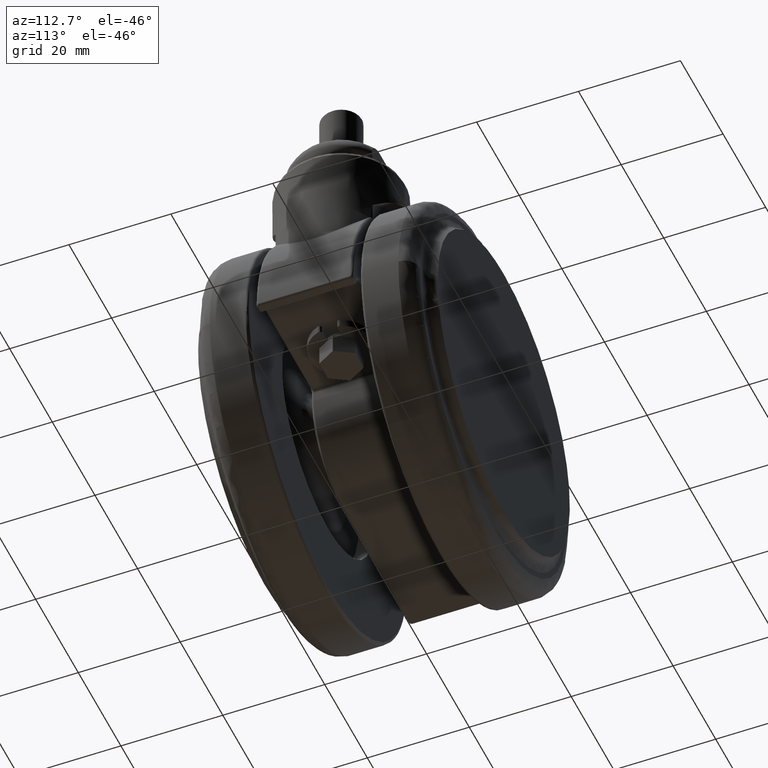
[diagram: clean part render]
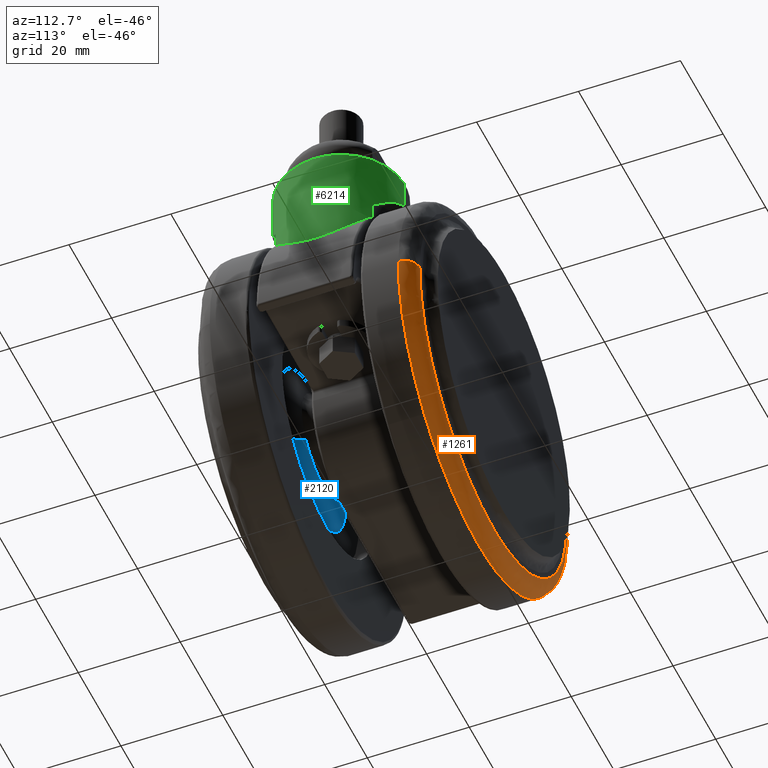
[diagram: same view with three faces highlighted in distinct colors, each labeled with its STEP entity id]
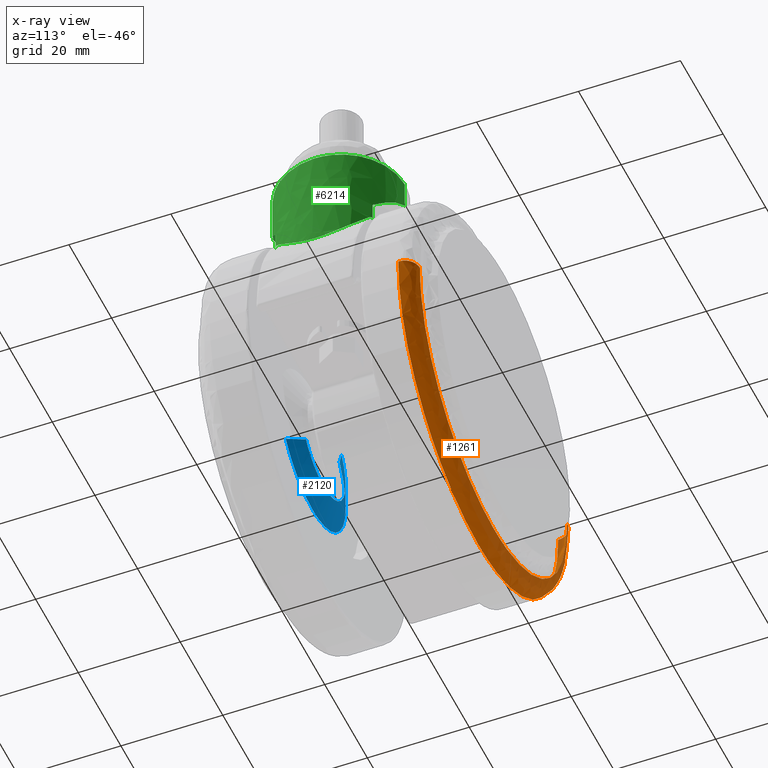
[diagram: x-ray of the same camera — body ghosted, the three highlighted faces saturated]
A machine part, auxiliary view with three faces highlighted in distinct colors.
The next image is the same camera in x-ray (body ghosted, the three faces saturated) — at least one of them is partly hidden behind the body in this view.
Their STEP definitions:

[orange] entity #1261 — the highlighted face is a freeform B-spline surface patch.
#1034=CARTESIAN_POINT('',(5.334630980545483,18.500000000211710,-68.147901784395486));
#1035=VERTEX_POINT('',#1034);
#1041=CARTESIAN_POINT('',(17.497039157643002,18.500000000455341,-40.028773504365802));
#1042=VERTEX_POINT('',#1041);
#1043=CARTESIAN_POINT('',(5.334630980545540,18.500000000211710,-68.147901784395543));
#1044=CARTESIAN_POINT('',(17.500000000000000,18.500000000352323,-57.000396369572684));
#1045=CARTESIAN_POINT('',(17.500000000000000,18.500000000452509,-40.500000000000000));
#1046=CARTESIAN_POINT('',(17.500000000000004,18.500000000453930,-40.264377450299897));
#1047=CARTESIAN_POINT('',(17.497039157642991,18.500000000455348,-40.028773504365809));
#1055=(BOUNDED_CURVE()B_SPLINE_CURVE(2,(#1043,#1044,#1045,#1046,#1047),.UNSPECIFIED.,.F.,.U.)B_SPLINE_CURVE_WITH_KNOTS((3,2,3),(0.118415199228371,0.250000000000000,0.252215704078312),.UNSPECIFIED.)CURVE()GEOMETRIC_REPRESENTATION_ITEM()RATIONAL_B_SPLINE_CURVE((0.853959782054475,0.845838816620283,1.0,0.997404141202261,0.994854295643921))REPRESENTATION_ITEM(''));
#1056=EDGE_CURVE('',#1035,#1042,#1055,.T.);
#1116=CARTESIAN_POINT('',(-57.497039157642988,18.500000000455351,-40.971226495634191));
#1117=VERTEX_POINT('',#1116);
#1133=CARTESIAN_POINT('',(-20.0,18.500000000000000,-78.000000000000014));
#1134=VERTEX_POINT('',#1133);
#1135=CARTESIAN_POINT('',(-57.497039157642988,18.500000000455344,-40.971226495634191));
#1136=CARTESIAN_POINT('',(-57.031697371515932,18.500000000227672,-78.000000000000014));
#1137=CARTESIAN_POINT('',(-20.0,18.500000000000000,-78.000000000000014));
#1145=(BOUNDED_CURVE()B_SPLINE_CURVE(2,(#1135,#1136,#1137),.UNSPECIFIED.,.F.,.U.)B_SPLINE_CURVE_WITH_KNOTS((3,3),(0.752215704078312,1.0),.UNSPECIFIED.)CURVE()GEOMETRIC_REPRESENTATION_ITEM()RATIONAL_B_SPLINE_CURVE((0.994854295643921,0.709702639984287,1.0))REPRESENTATION_ITEM(''));
#1146=EDGE_CURVE('',#1117,#1134,#1145,.T.);
#1148=CARTESIAN_POINT('',(-20.0,18.500000000000000,-78.000000000000014));
#1149=CARTESIAN_POINT('',(-5.417048964760109,18.500000000087432,-78.0));
#1150=CARTESIAN_POINT('',(5.334630980545540,18.500000000211710,-68.147901784395543));
#1158=(BOUNDED_CURVE()B_SPLINE_CURVE(2,(#1148,#1149,#1150),.UNSPECIFIED.,.F.,.U.)B_SPLINE_CURVE_WITH_KNOTS((3,3),(0.0,0.118415199228371),.UNSPECIFIED.)CURVE()GEOMETRIC_REPRESENTATION_ITEM()RATIONAL_B_SPLINE_CURVE((1.0,0.861267964566265,0.853959782054475))REPRESENTATION_ITEM(''));
#1159=EDGE_CURVE('',#1134,#1035,#1158,.T.);
#1167=CARTESIAN_POINT('',(17.476606423104172,18.291388672660208,-38.980772872872045));
#1168=CARTESIAN_POINT('',(17.483153771816106,18.291388672660208,-39.501766902938776));
#1169=CARTESIAN_POINT('',(17.960913069746042,18.291388672660204,-77.518642585233152));
#1170=CARTESIAN_POINT('',(-19.528864757743570,18.291388672660261,-77.989777827489633));
#1171=CARTESIAN_POINT('',(-57.018642585233160,18.291388672660315,-78.460913069746042));
#1172=CARTESIAN_POINT('',(-57.496401883162896,18.291388672660318,-40.444037387467056));
#1173=CARTESIAN_POINT('',(-57.502949231874652,18.291388672660322,-39.923043357415395));
#1174=CARTESIAN_POINT('',(17.716376549328995,21.732611522053201,-38.971053068578037));
#1175=CARTESIAN_POINT('',(17.722965787069228,21.732611522053208,-39.495380346136308));
#1176=CARTESIAN_POINT('',(18.203781722675380,21.732611522053197,-77.755482722387654));
#1177=CARTESIAN_POINT('',(-19.525850499856137,21.732611522053269,-78.229632222531521));
#1178=CARTESIAN_POINT('',(-57.255482722387661,21.732611522053315,-78.703781722675387));
#1179=CARTESIAN_POINT('',(-57.736298657993601,21.732611522053322,-40.443679346439552));
#1180=CARTESIAN_POINT('',(-57.742887895733659,21.732611522053315,-39.919352068896437));
#1181=CARTESIAN_POINT('',(14.276634331634103,21.492738090595235,-39.110493380447579));
#1182=CARTESIAN_POINT('',(14.282622629376624,21.492738090595239,-39.587001889674610));
#1183=CARTESIAN_POINT('',(14.719588041047052,21.492738090595243,-74.357774127735325));
#1184=CARTESIAN_POINT('',(-19.569093043344125,21.492738090595289,-74.788681084391186));
#1185=CARTESIAN_POINT('',(-53.857774127735311,21.492738090595335,-75.219588041047047));
#1186=CARTESIAN_POINT('',(-54.294739539405562,21.492738090595346,-40.448815803000457));
#1187=CARTESIAN_POINT('',(-54.300727837147917,21.492738090595342,-39.972307293787217));
#1195=(BOUNDED_SURFACE()B_SPLINE_SURFACE(2,2,((#1167,#1174,#1181),(#1168,#1175,#1182),(#1169,#1176,#1183),(#1170,#1177,#1184),(#1171,#1178,#1185),(#1172,#1179,#1186),(#1173,#1180,#1187)),.UNSPECIFIED.,.F.,.F.,.U.)B_SPLINE_SURFACE_WITH_KNOTS((3,1,2,1,3),(3,3),(0.0,1.242400048831875,63.362402489084872,125.482404929337900,126.724804978133210),(0.0,5.468189979833281),.UNSPECIFIED.)GEOMETRIC_REPRESENTATION_ITEM()RATIONAL_B_SPLINE_SURFACE(((0.921146729405180,0.604479481452586,0.921146741237813),(0.915813262248088,0.600979527147212,0.915813274012210),(0.643806437242182,0.422481857576905,0.643806445512228),(0.910479795090997,0.597479572841838,0.910479806786608),(0.643806437242182,0.422481857576905,0.643806445512228),(0.915813262247931,0.600979527147109,0.915813274012053),(0.921146729404866,0.604479481452380,0.921146741237499)))REPRESENTATION_ITEM('')SURFACE());
#1196=ORIENTED_EDGE('',*,*,#1056,.F.);
#1197=ORIENTED_EDGE('',*,*,#1159,.F.);
#1198=ORIENTED_EDGE('',*,*,#1146,.F.);
#1199=CARTESIAN_POINT('',(-54.497276025979460,21.500000000000028,-40.933528376008518));
#1200=VERTEX_POINT('',#1199);
#1201=CARTESIAN_POINT('',(-57.497039157642988,18.500000000455351,-40.971226495634191));
#1202=CARTESIAN_POINT('',(-57.497039157187622,21.499999999051884,-40.971226495634689));
#1203=CARTESIAN_POINT('',(-54.497276025979460,21.500000000000018,-40.933528376008518));
#1211=(BOUNDED_CURVE()B_SPLINE_CURVE(2,(#1201,#1202,#1203),.UNSPECIFIED.,.F.,.U.)B_SPLINE_CURVE_WITH_KNOTS((3,3),(-1.725134643126181,-0.274865357042298),.UNSPECIFIED.)CURVE()GEOMETRIC_REPRESENTATION_ITEM()RATIONAL_B_SPLINE_CURVE((0.883342149597530,0.624617224213166,0.883342149537418))REPRESENTATION_ITEM(''));
#1212=EDGE_CURVE('',#1117,#1200,#1211,.T.);
#1213=ORIENTED_EDGE('',*,*,#1212,.T.);
#1214=CARTESIAN_POINT('',(-20.0,21.500000000000000,-75.000000000000014));
#1215=VERTEX_POINT('',#1214);
#1216=CARTESIAN_POINT('',(-54.497276025979467,21.500000000000025,-40.933528376008510));
#1217=CARTESIAN_POINT('',(-54.069161582255717,21.500000000000014,-75.000000000005983));
#1218=CARTESIAN_POINT('',(-20.0,21.500000000000000,-75.000000000000014));
#1226=(BOUNDED_CURVE()B_SPLINE_CURVE(2,(#1216,#1217,#1218),.UNSPECIFIED.,.F.,.U.)B_SPLINE_CURVE_WITH_KNOTS((3,3),(0.752215704078379,1.0),.UNSPECIFIED.)CURVE()GEOMETRIC_REPRESENTATION_ITEM()RATIONAL_B_SPLINE_CURVE((0.994854295643767,0.709702639984365,1.0))REPRESENTATION_ITEM(''));
#1227=EDGE_CURVE('',#1200,#1215,#1226,.T.);
#1228=ORIENTED_EDGE('',*,*,#1227,.T.);
#1229=CARTESIAN_POINT('',(14.497276025979470,21.499999999999972,-40.066471623991482));
#1230=VERTEX_POINT('',#1229);
#1231=CARTESIAN_POINT('',(-20.0,21.500000000000000,-75.000000000000014));
#1232=CARTESIAN_POINT('',(14.500000000468120,21.499999999999982,-74.999999999994145));
#1233=CARTESIAN_POINT('',(14.500000000942149,21.499999999999972,-40.499999999988169));
#1234=CARTESIAN_POINT('',(14.500000000945130,21.499999999999968,-40.283227254257461));
#1235=CARTESIAN_POINT('',(14.497276025979462,21.499999999999972,-40.066471623991468));
#1243=(BOUNDED_CURVE()B_SPLINE_CURVE(2,(#1231,#1232,#1233,#1234,#1235),.UNSPECIFIED.,.F.,.U.)B_SPLINE_CURVE_WITH_KNOTS((3,2,3),(0.0,0.250000000000000,0.252215704078379),.UNSPECIFIED.)CURVE()GEOMETRIC_REPRESENTATION_ITEM()RATIONAL_B_SPLINE_CURVE((1.0,0.707106781186548,1.0,0.997404141202182,0.994854295643766))REPRESENTATION_ITEM(''));
#1244=EDGE_CURVE('',#1215,#1230,#1243,.T.);
#1245=ORIENTED_EDGE('',*,*,#1244,.T.);
#1246=CARTESIAN_POINT('',(17.497039157642995,18.500000000455348,-40.028773504365795));
#1247=CARTESIAN_POINT('',(17.497039157187558,21.499999999051806,-40.028773504365283));
#1248=CARTESIAN_POINT('',(14.497276025979462,21.499999999999979,-40.066471623991475));
#1256=(BOUNDED_CURVE()B_SPLINE_CURVE(2,(#1246,#1247,#1248),.UNSPECIFIED.,.F.,.U.)B_SPLINE_CURVE_WITH_KNOTS((3,3),(-1.725134643126144,-0.274865357042294),.UNSPECIFIED.)CURVE()GEOMETRIC_REPRESENTATION_ITEM()RATIONAL_B_SPLINE_CURVE((0.883342149597517,0.624617224213172,0.883342149537419))REPRESENTATION_ITEM(''));
#1257=EDGE_CURVE('',#1042,#1230,#1256,.T.);
#1258=ORIENTED_EDGE('',*,*,#1257,.F.);
#1259=EDGE_LOOP('',(#1196,#1197,#1198,#1213,#1228,#1245,#1258));
#1260=FACE_OUTER_BOUND('',#1259,.T.);
#1261=ADVANCED_FACE('',(#1260),#1195,.T.);

[blue] entity #2120 — the highlighted face is a freeform B-spline surface patch.
#1837=CARTESIAN_POINT('',(-29.419301099958592,-11.823357401013970,-44.506019158326033));
#1838=VERTEX_POINT('',#1837);
#1852=CARTESIAN_POINT('',(-28.333116507314269,-11.823357401181370,-34.556045761121950));
#1853=VERTEX_POINT('',#1852);
#1854=CARTESIAN_POINT('',(-28.333116507314269,-11.823357401181370,-34.556045761121950));
#1855=CARTESIAN_POINT('',(-30.235791259768387,-11.823357401122161,-37.223497385417410));
#1856=CARTESIAN_POINT('',(-30.235791259674649,-11.823357401070220,-40.499999999792017));
#1857=CARTESIAN_POINT('',(-30.235791259614970,-11.823357401037144,-42.586216392896795));
#1858=CARTESIAN_POINT('',(-29.419301099958592,-11.823357401013970,-44.506019158326040));
#1866=(BOUNDED_CURVE()B_SPLINE_CURVE(2,(#1854,#1855,#1856,#1857,#1858),.UNSPECIFIED.,.F.,.U.)B_SPLINE_CURVE_WITH_KNOTS((3,2,3),(0.650075709669775,0.750000000000000,0.816449865338749),.UNSPECIFIED.)CURVE()GEOMETRIC_REPRESENTATION_ITEM()RATIONAL_B_SPLINE_CURVE((0.859446788450959,0.882931411870121,1.0,0.922149140204853,0.885683713608853))REPRESENTATION_ITEM(''));
#1867=EDGE_CURVE('',#1853,#1838,#1866,.T.);
#1946=CARTESIAN_POINT('',(-11.666883492685740,-11.823357401181379,-46.443954238878050));
#1947=VERTEX_POINT('',#1946);
#1963=CARTESIAN_POINT('',(-20.0,-11.823357401279340,-50.735791260166202));
#1964=VERTEX_POINT('',#1963);
#1965=CARTESIAN_POINT('',(-20.0,-11.823357401279340,-50.735791260166202));
#1966=CARTESIAN_POINT('',(-14.728221088369404,-11.823357401248698,-50.735791260208110));
#1967=CARTESIAN_POINT('',(-11.666883492685741,-11.823357401181372,-46.443954238878057));
#1975=(BOUNDED_CURVE()B_SPLINE_CURVE(2,(#1965,#1966,#1967),.UNSPECIFIED.,.F.,.U.)B_SPLINE_CURVE_WITH_KNOTS((3,3),(0.0,0.150075709669775),.UNSPECIFIED.)CURVE()GEOMETRIC_REPRESENTATION_ITEM()RATIONAL_B_SPLINE_CURVE((1.0,0.824175369316426,0.859446788450959))REPRESENTATION_ITEM(''));
#1976=EDGE_CURVE('',#1964,#1947,#1975,.T.);
#1978=CARTESIAN_POINT('',(-29.419301099958595,-11.823357401013968,-44.506019158326033));
#1979=CARTESIAN_POINT('',(-26.769785374391791,-11.823357401146653,-50.735791260040614));
#1980=CARTESIAN_POINT('',(-20.0,-11.823357401279340,-50.735791260166202));
#1988=(BOUNDED_CURVE()B_SPLINE_CURVE(2,(#1978,#1979,#1980),.UNSPECIFIED.,.F.,.U.)B_SPLINE_CURVE_WITH_KNOTS((3,3),(0.816449865338749,1.0),.UNSPECIFIED.)CURVE()GEOMETRIC_REPRESENTATION_ITEM()RATIONAL_B_SPLINE_CURVE((0.885683713608853,0.784957640981694,1.0))REPRESENTATION_ITEM(''));
#1989=EDGE_CURVE('',#1838,#1964,#1988,.T.);
#2018=CARTESIAN_POINT('',(-32.618790534514858,-14.000000000000240,-31.499104186468081));
#2019=VERTEX_POINT('',#2018);
#2020=CARTESIAN_POINT('',(-28.333116507314269,-11.823357401181370,-34.556045761121950));
#2021=CARTESIAN_POINT('',(-32.618790534514858,-14.000000000000240,-31.499104186468081));
#2022=QUASI_UNIFORM_CURVE('',1,(#2020,#2021),.UNSPECIFIED.,.F.,.U.);
#2023=EDGE_CURVE('',#1853,#2019,#2022,.T.);
#2040=CARTESIAN_POINT('',(-7.381209465485160,-14.000000000000240,-49.500895813531933));
#2041=VERTEX_POINT('',#2040);
#2057=CARTESIAN_POINT('',(-11.666883492685740,-11.823357401181379,-46.443954238878050));
#2058=CARTESIAN_POINT('',(-7.381209465485160,-14.000000000000240,-49.500895813531933));
#2059=QUASI_UNIFORM_CURVE('',1,(#2057,#2058),.UNSPECIFIED.,.F.,.U.);
#2060=EDGE_CURVE('',#1947,#2041,#2059,.T.);
#2065=CARTESIAN_POINT('',(-28.225974656347681,-11.768941336039310,-34.632469300930751));
#2066=CARTESIAN_POINT('',(-34.093505355416937,-11.768941336039314,-42.858443957278432));
#2067=CARTESIAN_POINT('',(-25.867530699069249,-11.768941336039310,-48.725974656347681));
#2068=CARTESIAN_POINT('',(-17.641556042721572,-11.768941336039314,-54.593505355416930));
#2069=CARTESIAN_POINT('',(-11.774025343652321,-11.768941336039310,-46.367530699069249));
#2070=CARTESIAN_POINT('',(-32.728610931477327,-14.055776466599021,-31.420770058619180));
#2071=CARTESIAN_POINT('',(-41.807840872858158,-14.055776466599019,-44.149380990096503));
#2072=CARTESIAN_POINT('',(-29.079229941380820,-14.055776466599021,-53.228610931477327));
#2073=CARTESIAN_POINT('',(-16.350619009903500,-14.055776466599019,-62.307840872858165));
#2074=CARTESIAN_POINT('',(-7.271389068522673,-14.055776466599021,-49.579229941380817));
#2082=(BOUNDED_SURFACE()B_SPLINE_SURFACE(2,1,((#2065,#2070),(#2066,#2071),(#2067,#2072),(#2068,#2073),(#2069,#2074)),.UNSPECIFIED.,.F.,.F.,.U.)B_SPLINE_SURFACE_WITH_KNOTS((3,2,3),(2,2),(0.0,25.904742799317361,51.809485598634723),(0.0,5.984844222161525),.UNSPECIFIED.)GEOMETRIC_REPRESENTATION_ITEM()RATIONAL_B_SPLINE_SURFACE(((1.0,1.0),(0.707106781186548,0.707106781186548),(1.0,1.0),(0.707106781186548,0.707106781186548),(1.0,1.0)))REPRESENTATION_ITEM('')SURFACE());
#2083=ORIENTED_EDGE('',*,*,#1976,.T.);
#2084=ORIENTED_EDGE('',*,*,#2060,.T.);
#2085=CARTESIAN_POINT('',(-20.0,-14.0,-56.0));
#2086=VERTEX_POINT('',#2085);
#2087=CARTESIAN_POINT('',(-20.0,-14.0,-56.0));
#2088=CARTESIAN_POINT('',(-12.016975429243059,-14.000000000000115,-56.000000000000163));
#2089=CARTESIAN_POINT('',(-7.381209465485160,-14.000000000000242,-49.500895813531926));
#2097=(BOUNDED_CURVE()B_SPLINE_CURVE(2,(#2087,#2088,#2089),.UNSPECIFIED.,.F.,.U.)B_SPLINE_CURVE_WITH_KNOTS((3,3),(0.0,0.150075709668550),.UNSPECIFIED.)CURVE()GEOMETRIC_REPRESENTATION_ITEM()RATIONAL_B_SPLINE_CURVE((1.0,0.824175369317860,0.859446788450384))REPRESENTATION_ITEM(''));
#2098=EDGE_CURVE('',#2086,#2041,#2097,.T.);
#2099=ORIENTED_EDGE('',*,*,#2098,.F.);
#2100=CARTESIAN_POINT('',(-32.618790534514858,-14.000000000000238,-31.499104186468085));
#2101=CARTESIAN_POINT('',(-35.500000000000441,-14.000000000000224,-35.538410882626629));
#2102=CARTESIAN_POINT('',(-35.500000000000377,-14.000000000000190,-40.499999999999737));
#2103=CARTESIAN_POINT('',(-35.500000000000128,-14.000000000000062,-55.999999999999908));
#2104=CARTESIAN_POINT('',(-20.0,-14.0,-56.0));
#2112=(BOUNDED_CURVE()B_SPLINE_CURVE(2,(#2100,#2101,#2102,#2103,#2104),.UNSPECIFIED.,.F.,.U.)B_SPLINE_CURVE_WITH_KNOTS((3,2,3),(0.650075709668551,0.750000000000000,1.0),.UNSPECIFIED.)CURVE()GEOMETRIC_REPRESENTATION_ITEM()RATIONAL_B_SPLINE_CURVE((0.859446788450384,0.882931411868687,1.0,0.707106781186548,1.0))REPRESENTATION_ITEM(''));
#2113=EDGE_CURVE('',#2019,#2086,#2112,.T.);
#2114=ORIENTED_EDGE('',*,*,#2113,.F.);
#2115=ORIENTED_EDGE('',*,*,#2023,.F.);
#2116=ORIENTED_EDGE('',*,*,#1867,.T.);
#2117=ORIENTED_EDGE('',*,*,#1989,.T.);
#2118=EDGE_LOOP('',(#2083,#2084,#2099,#2114,#2115,#2116,#2117));
#2119=FACE_OUTER_BOUND('',#2118,.T.);
#2120=ADVANCED_FACE('',(#2119),#2082,.T.);

[green] entity #6214 — the highlighted face is a freeform B-spline surface patch.
#5269=CARTESIAN_POINT('',(-0.225964656877313,-12.497957432070320,-0.999999999055595));
#5270=VERTEX_POINT('',#5269);
#5284=CARTESIAN_POINT('',(12.496052366039271,-0.314126193120608,-0.999999998100721));
#5285=VERTEX_POINT('',#5284);
#5286=CARTESIAN_POINT('',(12.496052366039262,-0.314126193120608,-0.999999998100721));
#5287=CARTESIAN_POINT('',(12.189723452181109,-12.499999999999975,-0.999999998112359));
#5288=CARTESIAN_POINT('',(8.993402E-016,-12.499999999999970,-0.999999999038426));
#5289=CARTESIAN_POINT('',(-0.112991560156139,-12.499999999999973,-0.999999999047010));
#5290=CARTESIAN_POINT('',(-0.225964656877311,-12.497957432070315,-0.999999999055595));
#5298=(BOUNDED_CURVE()B_SPLINE_CURVE(2,(#5286,#5287,#5288,#5289,#5290),.UNSPECIFIED.,.F.,.U.)B_SPLINE_CURVE_WITH_KNOTS((3,2,3),(0.004420108231298,0.250000000000000,0.253183962508897),.UNSPECIFIED.)CURVE()GEOMETRIC_REPRESENTATION_ITEM()RATIONAL_B_SPLINE_CURVE((0.989826157679079,0.712285260096022,1.0,0.996269755888751,0.992634527436696))REPRESENTATION_ITEM(''));
#5299=EDGE_CURVE('',#5285,#5270,#5298,.T.);
#5350=CARTESIAN_POINT('',(12.500000000000000,2.842171E-014,-1.0));
#5351=VERTEX_POINT('',#5350);
#5352=CARTESIAN_POINT('',(12.500000000000000,2.842171E-014,-1.0));
#5353=CARTESIAN_POINT('',(12.499999999999998,-0.157087901581694,-0.999999999050360));
#5354=CARTESIAN_POINT('',(12.496052366039264,-0.314126193120608,-0.999999998100721));
#5362=(BOUNDED_CURVE()B_SPLINE_CURVE(2,(#5352,#5353,#5354),.UNSPECIFIED.,.F.,.U.)B_SPLINE_CURVE_WITH_KNOTS((3,3),(0.0,0.004420108231298),.UNSPECIFIED.)CURVE()GEOMETRIC_REPRESENTATION_ITEM()RATIONAL_B_SPLINE_CURVE((1.0,0.994821521090526,0.989826157679078))REPRESENTATION_ITEM(''));
#5363=EDGE_CURVE('',#5351,#5285,#5362,.T.);
#5365=CARTESIAN_POINT('',(0.225964656877310,12.497957432070370,-0.999999999055595));
#5366=VERTEX_POINT('',#5365);
#5367=CARTESIAN_POINT('',(0.225964656877312,12.497957432070367,-0.999999999055595));
#5368=CARTESIAN_POINT('',(12.500000000000000,12.276041314986168,-0.999999999988280));
#5369=CARTESIAN_POINT('',(12.500000000000000,2.842171E-014,-1.0));
#5377=(BOUNDED_CURVE()B_SPLINE_CURVE(2,(#5367,#5368,#5369),.UNSPECIFIED.,.F.,.U.)B_SPLINE_CURVE_WITH_KNOTS((3,3),(0.753183962508897,1.0),.UNSPECIFIED.)CURVE()GEOMETRIC_REPRESENTATION_ITEM()RATIONAL_B_SPLINE_CURVE((0.992634527436696,0.710837025297796,1.0))REPRESENTATION_ITEM(''));
#5378=EDGE_CURVE('',#5366,#5351,#5377,.T.);
#5413=CARTESIAN_POINT('',(8.124038404636160,-9.499999999999801,-16.457569511080550));
#5414=VERTEX_POINT('',#5413);
#5428=CARTESIAN_POINT('',(8.124038404636170,-9.499999999999840,-12.763950104340299));
#5429=VERTEX_POINT('',#5428);
#5430=CARTESIAN_POINT('',(8.124038404636170,-9.499999999999840,-12.763950104340299));
#5431=CARTESIAN_POINT('',(8.124038404636160,-9.499999999999801,-16.457569511080550));
#5432=QUASI_UNIFORM_CURVE('',1,(#5430,#5431),.UNSPECIFIED.,.F.,.U.);
#5433=EDGE_CURVE('',#5429,#5414,#5432,.T.);
#5566=CARTESIAN_POINT('',(8.674675786448910,-8.999999999999799,-16.333639733257101));
#5567=VERTEX_POINT('',#5566);
#5568=CARTESIAN_POINT('',(8.124038404636160,-9.499999999999801,-16.457569511080600));
#5569=CARTESIAN_POINT('',(8.124038404636162,-9.499999999999806,-16.414200064559129));
#5570=CARTESIAN_POINT('',(8.126690332502317,-9.497736174231699,-16.371231805839461));
#5571=CARTESIAN_POINT('',(8.137386926826496,-9.488569757979171,-16.307798470748519));
#5572=CARTESIAN_POINT('',(8.142108294493145,-9.484520936983955,-16.286908163841989));
#5573=CARTESIAN_POINT('',(8.154325207744590,-9.474019489619083,-16.246955735573270));
#5574=CARTESIAN_POINT('',(8.161929370907595,-9.467473804620305,-16.227565396909519));
#5575=CARTESIAN_POINT('',(8.180545957117136,-9.451392444521082,-16.191806845591518));
#5576=CARTESIAN_POINT('',(8.191382210520674,-9.442009227296703,-16.175708452779169));
#5577=CARTESIAN_POINT('',(8.216666540567884,-9.420014422934973,-16.147752807852090));
#5578=CARTESIAN_POINT('',(8.230600532916677,-9.407848327945837,-16.136515024708210));
#5579=CARTESIAN_POINT('',(8.260486312864730,-9.381618259610443,-16.119507982290401));
#5580=CARTESIAN_POINT('',(8.276427287217794,-9.367561565847229,-16.113804756467989));
#5581=CARTESIAN_POINT('',(8.308466142649705,-9.339156743892085,-16.107514956112752));
#5582=CARTESIAN_POINT('',(8.324858493027625,-9.324547908247004,-16.106840570233022));
#5583=CARTESIAN_POINT('',(8.356898455556038,-9.295843739309142,-16.109260608728899));
#5584=CARTESIAN_POINT('',(8.372714715982632,-9.281599759130637,-16.112313052533828));
#5585=CARTESIAN_POINT('',(8.404022424144115,-9.253261743753331,-16.121232030605800));
#5586=CARTESIAN_POINT('',(8.419550485769483,-9.239133394516564,-16.127137941274309));
#5587=CARTESIAN_POINT('',(8.464723528064031,-9.197832388656034,-16.147804600729071));
#5588=CARTESIAN_POINT('',(8.493372642115336,-9.171371227154255,-16.165534998831280));
#5589=CARTESIAN_POINT('',(8.548688806194287,-9.119832713320719,-16.206240134389411));
#5590=CARTESIAN_POINT('',(8.575406623329005,-9.094704077569281,-16.229350710746850));
#5591=CARTESIAN_POINT('',(8.626532156191512,-9.046224846430917,-16.278987563822970));
#5592=CARTESIAN_POINT('',(8.651034908655541,-9.022786327795874,-16.305588570460980));
#5593=CARTESIAN_POINT('',(8.674675786448919,-8.999999999999799,-16.333639733257101));
#5594=B_SPLINE_CURVE_WITH_KNOTS('',3,(#5568,#5569,#5570,#5571,#5572,#5573,#5574,#5575,#5576,#5577,#5578,#5579,#5580,#5581,#5582,#5583,#5584,#5585,#5586,#5587,#5588,#5589,#5590,#5591,#5592,#5593),.UNSPECIFIED.,.F.,.U.,(4,2,2,2,2,2,2,2,2,2,2,2,4),(0.0,0.124999999999995,0.187499999999997,0.249999999999998,0.312500000000000,0.375000000000002,0.437500000000004,0.500000000000006,0.562500000000007,0.625000000000009,0.750000000000006,0.875000000000003,1.0),.UNSPECIFIED.);
#5595=EDGE_CURVE('',#5414,#5567,#5594,.T.);
#5733=CARTESIAN_POINT('',(-0.225964702772757,-12.497959970627081,-6.305884120731403));
#5734=VERTEX_POINT('',#5733);
#5735=CARTESIAN_POINT('',(-0.225964702772757,-12.497959970627081,-6.305884120731403));
#5736=CARTESIAN_POINT('',(0.036371884995677,-12.502707935323720,-6.457589700772418));
#5737=CARTESIAN_POINT('',(0.296264470129033,-12.499144299371871,-6.611910916860469));
#5738=CARTESIAN_POINT('',(1.279961564842661,-12.455522154454011,-7.211317381841680));
#5739=CARTESIAN_POINT('',(1.987225242033013,-12.361174449275561,-7.674395283898874));
#5740=CARTESIAN_POINT('',(2.848662871004648,-12.172353411265251,-8.278378668179485));
#5741=CARTESIAN_POINT('',(3.020024907904202,-12.130961710757150,-8.400585281632182));
#5742=CARTESIAN_POINT('',(3.359527115579871,-12.041360501222680,-8.646798200253530));
#5743=CARTESIAN_POINT('',(3.527276741622434,-11.993265088561980,-8.770515328236822));
#5744=CARTESIAN_POINT('',(4.024726761153989,-11.839427408933350,-9.143433004626850));
#5745=CARTESIAN_POINT('',(4.348636310821356,-11.724154947162930,-9.394401833605473));
#5746=CARTESIAN_POINT('',(5.298514054063613,-11.342029479992091,-10.153789478320761));
#5747=CARTESIAN_POINT('',(5.902730168755372,-11.039182372447780,-10.668742591254210));
#5748=CARTESIAN_POINT('',(6.624379925546759,-10.601701100643851,-11.320722621264469));
#5749=CARTESIAN_POINT('',(6.767020840404126,-10.511233478500721,-11.451528870957350));
#5750=CARTESIAN_POINT('',(7.048960003299436,-10.324280378423969,-11.713877609948700));
#5751=CARTESIAN_POINT('',(7.188300769149589,-10.227755230760261,-11.845464961121710));
#5752=CARTESIAN_POINT('',(7.599767507325590,-9.930163002288571,-12.239654275978181));
#5753=CARTESIAN_POINT('',(7.865886326747391,-9.720761737491982,-12.502186838535430));
#5754=CARTESIAN_POINT('',(8.124038404636170,-9.499999999999840,-12.763950104340299));
#5755=B_SPLINE_CURVE_WITH_KNOTS('',3,(#5735,#5736,#5737,#5738,#5739,#5740,#5741,#5742,#5743,#5744,#5745,#5746,#5747,#5748,#5749,#5750,#5751,#5752,#5753,#5754),.UNSPECIFIED.,.F.,.U.,(4,2,2,2,2,2,2,2,2,4),(0.455674687676511,0.500000000000001,0.625000000000001,0.656250000000001,0.687500000000001,0.750000000000001,0.875000000000000,0.906250000000000,0.937500000000000,1.0),.UNSPECIFIED.);
#5756=EDGE_CURVE('',#5734,#5429,#5755,.T.);
#5929=CARTESIAN_POINT('',(0.225964703473396,12.497960015080190,-6.571245502004594));
#5930=VERTEX_POINT('',#5929);
#5931=CARTESIAN_POINT('',(0.225964703473396,12.497960015080190,-6.571245502004594));
#5932=CARTESIAN_POINT('',(0.225964656877310,12.497957432070370,-0.999999999055595));
#5933=QUASI_UNIFORM_CURVE('',1,(#5931,#5932),.UNSPECIFIED.,.F.,.U.);
#5934=EDGE_CURVE('',#5930,#5366,#5933,.T.);
#6054=CARTESIAN_POINT('',(-0.225964702772757,-12.497959970627081,-6.305884120731403));
#6055=CARTESIAN_POINT('',(-0.225964656877313,-12.497957432070320,-0.999999999055595));
#6056=QUASI_UNIFORM_CURVE('',1,(#6054,#6055),.UNSPECIFIED.,.F.,.U.);
#6057=EDGE_CURVE('',#5734,#5270,#6056,.T.);
#6064=CARTESIAN_POINT('',(-0.225964656763977,-12.497957432072360,-22.311505883681590));
#6065=CARTESIAN_POINT('',(12.271992775308412,-12.723922088836341,-22.311505883681580));
#6066=CARTESIAN_POINT('',(12.497957432072390,-0.225964656763949,-22.311505883681590));
#6067=CARTESIAN_POINT('',(12.723922088836368,12.271992775308442,-22.311505883681580));
#6068=CARTESIAN_POINT('',(0.225964656763977,12.497957432072420,-22.311505883681590));
#6069=CARTESIAN_POINT('',(-0.225964656763977,-12.497957432072360,-0.467212350961198));
#6070=CARTESIAN_POINT('',(12.271992775308412,-12.723922088836341,-0.467212350961198));
#6071=CARTESIAN_POINT('',(12.497957432072390,-0.225964656763949,-0.467212350961198));
#6072=CARTESIAN_POINT('',(12.723922088836368,12.271992775308442,-0.467212350961198));
#6073=CARTESIAN_POINT('',(0.225964656763977,12.497957432072420,-0.467212350961198));
#6081=(BOUNDED_SURFACE()B_SPLINE_SURFACE(2,1,((#6064,#6069),(#6065,#6070),(#6066,#6071),(#6067,#6072),(#6068,#6073)),.UNSPECIFIED.,.F.,.F.,.U.)B_SPLINE_SURFACE_WITH_KNOTS((3,2,3),(2,2),(0.0,20.710678118654759,41.421356237309510),(0.0,21.844293532720389),.UNSPECIFIED.)GEOMETRIC_REPRESENTATION_ITEM()RATIONAL_B_SPLINE_SURFACE(((1.0,1.0),(0.707106781186548,0.707106781186548),(1.0,1.0),(0.707106781186548,0.707106781186548),(1.0,1.0)))REPRESENTATION_ITEM('')SURFACE());
#6082=ORIENTED_EDGE('',*,*,#5378,.T.);
#6083=ORIENTED_EDGE('',*,*,#5363,.T.);
#6084=ORIENTED_EDGE('',*,*,#5299,.T.);
#6085=ORIENTED_EDGE('',*,*,#6057,.F.);
#6086=ORIENTED_EDGE('',*,*,#5756,.T.);
#6087=ORIENTED_EDGE('',*,*,#5433,.T.);
#6088=ORIENTED_EDGE('',*,*,#5595,.T.);
#6089=CARTESIAN_POINT('',(8.674675786448511,9.000000000000249,-16.333639733256600));
#6090=VERTEX_POINT('',#6089);
#6091=CARTESIAN_POINT('',(8.674675786448532,9.000000000000227,-16.333639733256550));
#6092=CARTESIAN_POINT('',(8.940283721757213,8.743993030543473,-16.648797719284168));
#6093=CARTESIAN_POINT('',(9.194608959558444,8.476258105902437,-16.961113725899470));
#6094=CARTESIAN_POINT('',(9.681378148960560,7.915725016313930,-17.577954923153680));
#6095=CARTESIAN_POINT('',(9.913826172125516,7.622945159763164,-17.882494977161510));
#6096=CARTESIAN_POINT('',(10.356856393979950,7.009191673392459,-18.480694843171278));
#6097=CARTESIAN_POINT('',(10.567450204404420,6.688256434733567,-18.774383455497048));
#6098=CARTESIAN_POINT('',(10.866287924383821,6.181604260563847,-19.203224978218000));
#6099=CARTESIAN_POINT('',(10.963050458770891,6.008490492576128,-19.344208521845282));
#6100=CARTESIAN_POINT('',(11.103741452060500,5.741692616818441,-19.552105848600391));
#6101=CARTESIAN_POINT('',(11.149942462308649,5.651474682292043,-19.620877531877579));
#6102=CARTESIAN_POINT('',(11.240593509763849,5.468952417569224,-19.756760436188021));
#6103=CARTESIAN_POINT('',(11.284982697977259,5.376776614588501,-19.823779251742959));
#6104=CARTESIAN_POINT('',(11.502178321472821,4.911097023104594,-20.153926410807859));
#6105=CARTESIAN_POINT('',(11.660836545065131,4.523347964631774,-20.402408430660639));
#6106=CARTESIAN_POINT('',(11.873748916460910,3.912867631777197,-20.743176636520911));
#6107=CARTESIAN_POINT('',(11.940521326706770,3.704535279289828,-20.851403559924659));
#6108=CARTESIAN_POINT('',(12.033838336114441,3.383658182725198,-21.004186022959932));
#6109=CARTESIAN_POINT('',(12.063859181280341,3.275066198694554,-21.053612363578520));
#6110=CARTESIAN_POINT('',(12.121069869548551,3.056537611271263,-21.148257749274300));
#6111=CARTESIAN_POINT('',(12.148293008235580,2.946510640498439,-21.193530051692740));
#6112=CARTESIAN_POINT('',(12.277361215254860,2.392398187260937,-21.409102789220238));
#6113=CARTESIAN_POINT('',(12.358208511430339,1.936446406612501,-21.547201379764591));
#6114=CARTESIAN_POINT('',(12.441636997178410,1.229615551649893,-21.690607470059469));
#6115=CARTESIAN_POINT('',(12.463111536527521,0.990175068144661,-21.727753469493049));
#6116=CARTESIAN_POINT('',(12.484979691760440,0.624644743598152,-21.765638333941570));
#6117=CARTESIAN_POINT('',(12.490543651405281,0.501350508508787,-21.775293629962029));
#6118=CARTESIAN_POINT('',(12.497974707116249,0.256244532283622,-21.788193691050431));
#6119=CARTESIAN_POINT('',(12.499874164478690,0.134079470014030,-21.791494465065512));
#6120=CARTESIAN_POINT('',(12.500473107877291,-0.474842071148541,-21.792534947605251));
#6121=CARTESIAN_POINT('',(12.472581371990231,-0.955889183473108,-21.743845231931719));
#6122=CARTESIAN_POINT('',(12.404086886140780,-1.550142464201308,-21.626052460052840));
#6123=CARTESIAN_POINT('',(12.388700126705899,-1.668640199615882,-21.599649557211961));
#6124=CARTESIAN_POINT('',(12.363103838664060,-1.845867332912648,-21.555877016412321));
#6125=CARTESIAN_POINT('',(12.354137774695010,-1.904943675446861,-21.540566750920348));
#6126=CARTESIAN_POINT('',(12.335469662962311,-2.022305307540810,-21.508745645800602));
#6127=CARTESIAN_POINT('',(12.325763718935400,-2.080627647391764,-21.492228068961619));
#6128=CARTESIAN_POINT('',(12.275425770864629,-2.370511492872324,-21.406723905342329));
#6129=CARTESIAN_POINT('',(12.229383646304020,-2.596903113808923,-21.329011411287439));
#6130=CARTESIAN_POINT('',(12.075532971917250,-3.261659707592711,-21.071925485928340));
#6131=CARTESIAN_POINT('',(11.952106605360751,-3.685712737236921,-20.868785983295531));
#6132=CARTESIAN_POINT('',(11.739438448841961,-4.299118232578121,-20.528120593578350));
#6133=CARTESIAN_POINT('',(11.663706809913180,-4.500261254784441,-20.408179922440329));
#6134=CARTESIAN_POINT('',(11.505386173223609,-4.890858504794842,-20.160820934727411));
#6135=CARTESIAN_POINT('',(11.422630968663229,-5.080875478848797,-20.033127970394460));
#6136=CARTESIAN_POINT('',(11.164243349375599,-5.637095524048551,-19.640031468452420));
#6137=CARTESIAN_POINT('',(10.978539119393020,-5.989575916181248,-19.364708844549241));
#6138=CARTESIAN_POINT('',(10.582108910058039,-6.665006516681842,-18.795045892451469));
#6139=CARTESIAN_POINT('',(10.371361270367309,-6.987905125279409,-18.500656996756469));
#6140=CARTESIAN_POINT('',(10.036785008006611,-7.453149325161068,-18.048347145919280));
#6141=CARTESIAN_POINT('',(9.922124096331089,-7.605092418712255,-17.895706703037749));
#6142=CARTESIAN_POINT('',(9.686807541421308,-7.902641136709413,-17.587535185189239));
#6143=CARTESIAN_POINT('',(9.566526816116877,-8.047779387437215,-17.432493092180131));
#6144=CARTESIAN_POINT('',(9.197830952827315,-8.472936877646598,-16.965043036111080));
#6145=CARTESIAN_POINT('',(8.941579668241522,-8.742743928811400,-16.650335428929498));
#6146=CARTESIAN_POINT('',(8.674675786448947,-8.999999999999769,-16.333639733257051));
#6147=B_SPLINE_CURVE_WITH_KNOTS('',3,(#6091,#6092,#6093,#6094,#6095,#6096,#6097,#6098,#6099,#6100,#6101,#6102,#6103,#6104,#6105,#6106,#6107,#6108,#6109,#6110,#6111,#6112,#6113,#6114,#6115,#6116,#6117,#6118,#6119,#6120,#6121,#6122,#6123,#6124,#6125,#6126,#6127,#6128,#6129,#6130,#6131,#6132,#6133,#6134,#6135,#6136,#6137,#6138,#6139,#6140,#6141,#6142,#6143,#6144,#6145,#6146),.UNSPECIFIED.,.F.,.U.,(4,2,2,2,2,2,2,2,2,2,2,2,2,2,2,2,2,2,2,2,2,2,2,2,2,2,2,4),(0.0,0.062500000000000,0.125000000000001,0.187500000000001,0.218750000000001,0.234375000000002,0.250000000000002,0.312500000000003,0.343750000000003,0.359375000000003,0.375000000000004,0.437500000000004,0.468750000000005,0.484375000000005,0.500000000000005,0.562500000000005,0.578125000000006,0.585937500000006,0.593750000000006,0.625000000000005,0.687500000000005,0.718750000000004,0.750000000000004,0.812500000000003,0.875000000000002,0.906250000000002,0.937500000000001,1.0),.UNSPECIFIED.);
#6148=EDGE_CURVE('',#6090,#5567,#6147,.T.);
#6149=ORIENTED_EDGE('',*,*,#6148,.F.);
#6150=CARTESIAN_POINT('',(8.124038404635760,9.500000000000199,-16.457569511080148));
#6151=VERTEX_POINT('',#6150);
#6152=CARTESIAN_POINT('',(8.674675786448511,9.000000000000249,-16.333639733256600));
#6153=CARTESIAN_POINT('',(8.627427777413102,9.045540128882189,-16.277577449748009));
#6154=CARTESIAN_POINT('',(8.577124040954491,9.093329999259312,-16.227303193416489));
#6155=CARTESIAN_POINT('',(8.494220704840990,9.170585665037335,-16.166091290011650));
#6156=CARTESIAN_POINT('',(8.465086889173247,9.197498406139454,-16.148001892388539));
#6157=CARTESIAN_POINT('',(8.404714916534228,9.252699073458391,-16.120319916482821));
#6158=CARTESIAN_POINT('',(8.373020927585900,9.281398364375388,-16.110515456669781));
#6159=CARTESIAN_POINT('',(8.325162950043646,9.324275876346984,-16.106845228767860));
#6160=CARTESIAN_POINT('',(8.309089672428113,9.338602446704512,-16.107443370603590));
#6161=CARTESIAN_POINT('',(8.276756153577184,9.367271449908413,-16.113690845729849));
#6162=CARTESIAN_POINT('',(8.261104310776043,9.381074286959793,-16.119237948653751));
#6163=CARTESIAN_POINT('',(8.238580346491087,9.400845370346030,-16.131935327873201));
#6164=CARTESIAN_POINT('',(8.231203758747975,9.407304085183791,-16.136939890578020));
#6165=CARTESIAN_POINT('',(8.217279549085301,9.419469320578887,-16.148171498662350));
#6166=CARTESIAN_POINT('',(8.210671445685414,9.425229081219866,-16.154424495296109));
#6167=CARTESIAN_POINT('',(8.191894753348585,9.441564258104668,-16.175059252404481));
#6168=CARTESIAN_POINT('',(8.180728344941070,9.451234567944857,-16.191521018690601));
#6169=CARTESIAN_POINT('',(8.162123452690508,9.467306473072346,-16.227129398121040));
#6170=CARTESIAN_POINT('',(8.154432232357346,9.473927408609708,-16.246650356864301));
#6171=CARTESIAN_POINT('',(8.142150391549384,9.484484834565706,-16.286726415467719));
#6172=CARTESIAN_POINT('',(8.137483083922726,9.488487296431689,-16.307349333034221));
#6173=CARTESIAN_POINT('',(8.130341294271025,9.494607551360163,-16.349462689363730));
#6174=CARTESIAN_POINT('',(8.127874115239612,9.496718730486993,-16.371031660469900));
#6175=CARTESIAN_POINT('',(8.124730462811979,9.499408359777972,-16.414187191647169));
#6176=CARTESIAN_POINT('',(8.124038404635757,9.500000000000197,-16.435846355131901));
#6177=CARTESIAN_POINT('',(8.124038404635760,9.500000000000199,-16.457569511080148));
#6178=B_SPLINE_CURVE_WITH_KNOTS('',3,(#6152,#6153,#6154,#6155,#6156,#6157,#6158,#6159,#6160,#6161,#6162,#6163,#6164,#6165,#6166,#6167,#6168,#6169,#6170,#6171,#6172,#6173,#6174,#6175,#6176,#6177),.UNSPECIFIED.,.F.,.U.,(4,2,2,2,2,2,2,2,2,2,2,2,4),(0.0,0.250000000000008,0.375000000000013,0.500000000000017,0.562500000000020,0.625000000000023,0.656250000000026,0.687500000000029,0.750000000000023,0.812500000000017,0.875000000000012,0.937500000000006,1.0),.UNSPECIFIED.);
#6179=EDGE_CURVE('',#6090,#6151,#6178,.T.);
#6180=ORIENTED_EDGE('',*,*,#6179,.T.);
#6181=CARTESIAN_POINT('',(8.124038404635760,9.500000000000290,-12.763950104339900));
#6182=VERTEX_POINT('',#6181);
#6183=CARTESIAN_POINT('',(8.124038404635760,9.500000000000290,-12.763950104339900));
#6184=CARTESIAN_POINT('',(8.124038404635760,9.500000000000199,-16.457569511080148));
#6185=QUASI_UNIFORM_CURVE('',1,(#6183,#6184),.UNSPECIFIED.,.F.,.U.);
#6186=EDGE_CURVE('',#6182,#6151,#6185,.T.);
#6187=ORIENTED_EDGE('',*,*,#6186,.F.);
#6188=CARTESIAN_POINT('',(0.225964703473396,12.497960015080190,-6.571245502004594));
#6189=CARTESIAN_POINT('',(0.335663004257653,12.495974692936979,-6.636640182009885));
#6190=CARTESIAN_POINT('',(0.444930841433443,12.492551513858309,-6.702499409616264));
#6191=CARTESIAN_POINT('',(1.279961484511331,12.455522011254979,-7.211317381853436));
#6192=CARTESIAN_POINT('',(1.987225168926890,12.361174318249169,-7.674395283909535));
#6193=CARTESIAN_POINT('',(2.848662807081615,12.172353295995739,-8.278378668188751));
#6194=CARTESIAN_POINT('',(3.020024845827700,12.130961598670210,-8.400585281641163));
#6195=CARTESIAN_POINT('',(3.359527057201023,12.041360395536611,-8.646798200261941));
#6196=CARTESIAN_POINT('',(3.527276685090393,11.993264986086720,-8.770515328244963));
#6197=CARTESIAN_POINT('',(4.024726710156525,11.839427316120551,-9.143433004634149));
#6198=CARTESIAN_POINT('',(4.348636263505822,11.724154860831760,-9.394401833612225));
#6199=CARTESIAN_POINT('',(5.298514017771695,11.342029413219700,-10.153789478325850));
#6200=CARTESIAN_POINT('',(5.902730139783134,11.039182318865540,-10.668742591258191));
#6201=CARTESIAN_POINT('',(6.624379905688822,10.601701063730861,-11.320722621267070));
#6202=CARTESIAN_POINT('',(6.767020822367273,10.511233444930710,-11.451528870959679));
#6203=CARTESIAN_POINT('',(7.048959988901178,10.324280351558301,-11.713877609950480));
#6204=CARTESIAN_POINT('',(7.188300756569441,10.227755207257101,-11.845464961123220));
#6205=CARTESIAN_POINT('',(7.599767500173339,9.930162988861602,-12.239654275978880));
#6206=CARTESIAN_POINT('',(7.865886323185343,9.720761730780012,-12.502186838535559));
#6207=CARTESIAN_POINT('',(8.124038404635760,9.500000000000290,-12.763950104339900));
#6208=B_SPLINE_CURVE_WITH_KNOTS('',3,(#6188,#6189,#6190,#6191,#6192,#6193,#6194,#6195,#6196,#6197,#6198,#6199,#6200,#6201,#6202,#6203,#6204,#6205,#6206,#6207),.UNSPECIFIED.,.F.,.U.,(4,2,2,2,2,2,2,2,2,4),(0.481264876843175,0.500000000000002,0.625000000000002,0.656250000000002,0.687500000000002,0.750000000000001,0.875000000000001,0.906250000000001,0.937500000000000,1.0),.UNSPECIFIED.);
#6209=EDGE_CURVE('',#5930,#6182,#6208,.T.);
#6210=ORIENTED_EDGE('',*,*,#6209,.F.);
#6211=ORIENTED_EDGE('',*,*,#5934,.T.);
#6212=EDGE_LOOP('',(#6082,#6083,#6084,#6085,#6086,#6087,#6088,#6149,#6180,#6187,#6210,#6211));
#6213=FACE_OUTER_BOUND('',#6212,.T.);
#6214=ADVANCED_FACE('',(#6213),#6081,.T.);